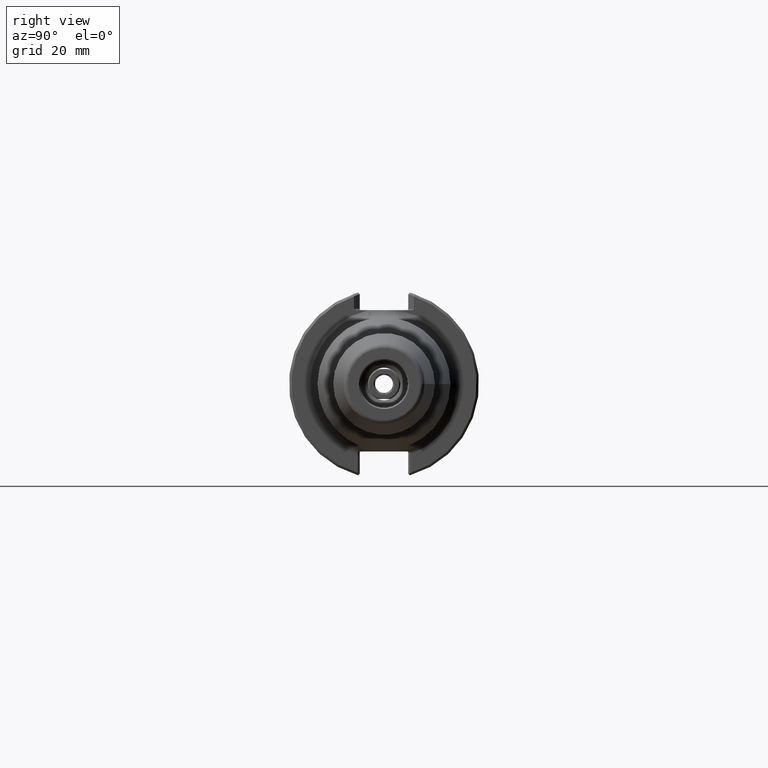
[diagram: clean part render]
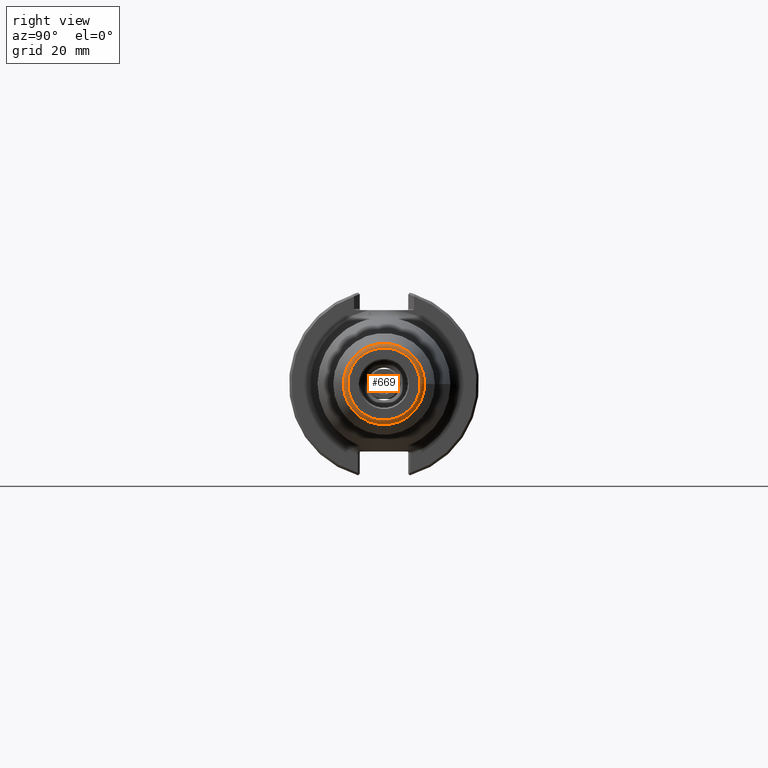
[diagram: same view with one face highlighted and labeled with its STEP entity id]
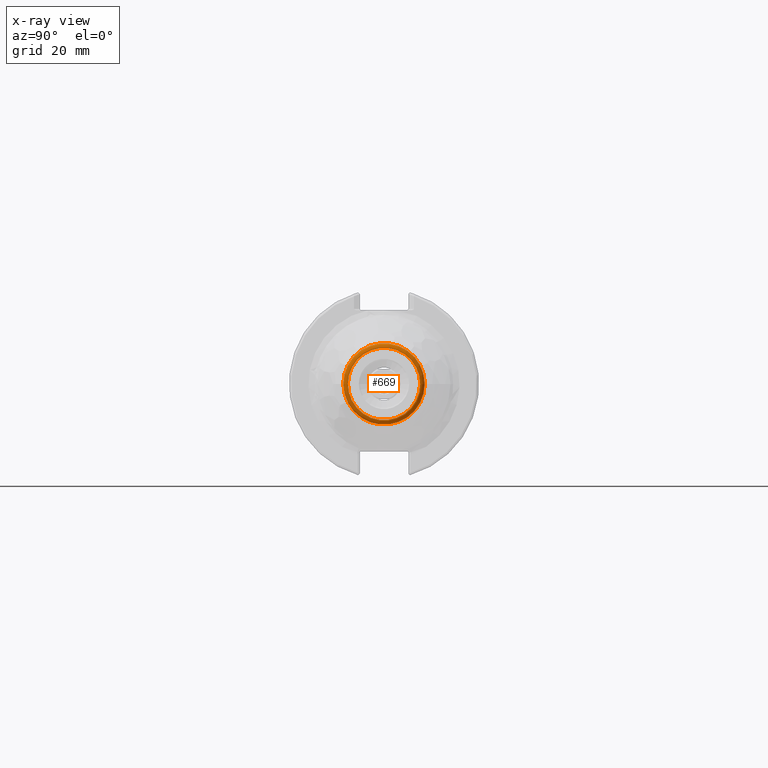
[diagram: x-ray of the same camera — body ghosted, the highlighted face saturated]
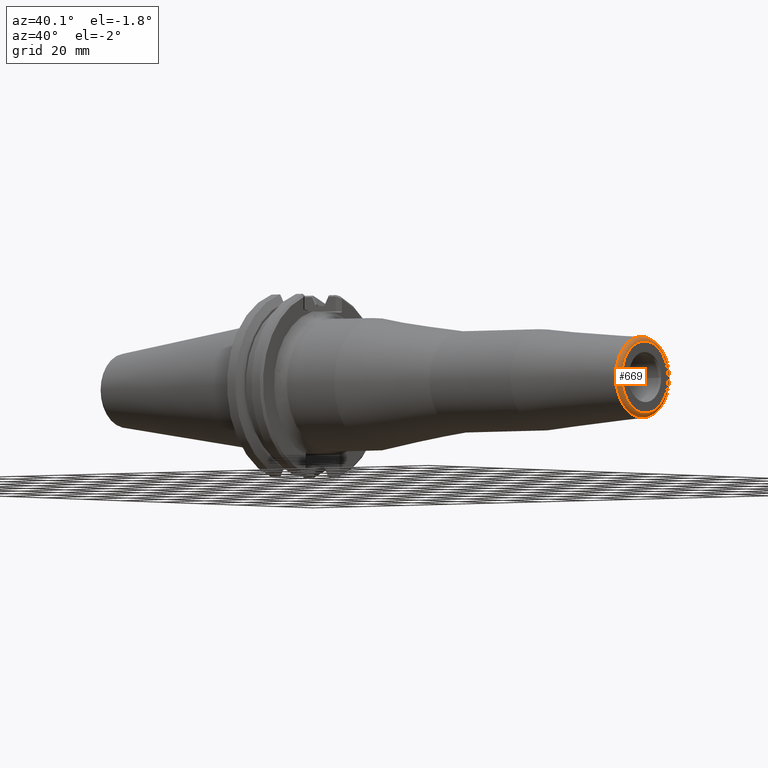
[diagram: same view with one face highlighted and labeled with its STEP entity id]
A machine part, right view. The second image highlights one B-rep face of the part: STEP entity #669.
The next image is the same camera in x-ray: the body ghosted, the highlighted face saturated — about 0% of this face is hidden behind the body in this view.
A second angle (auxiliary view) of the same face is appended — the face is thin or edge-on in the first view.
In plain terms, the highlighted toroidal blend (fillet) surface has major radius 12.0912 mm and minor (blend) radius 1.524 mm.
Its self-contained STEP definition (entity closure, byte-faithful):
#642=CARTESIAN_POINT('',(158.485999999999990,0.0,0.0));
#643=DIRECTION('',(1.0,0.0,0.0));
#644=DIRECTION('',(0.0,0.0,-1.0));
#645=AXIS2_PLACEMENT_3D('',#642,#643,#644);
#646=TOROIDAL_SURFACE('',#645,12.091228890712898,1.524000000000000);
#647=CARTESIAN_POINT('',(158.605571661889200,13.610530907322184,2.465190E-031));
#648=VERTEX_POINT('',#647);
#649=CARTESIAN_POINT('',(158.605571661889200,0.0,-1.666754E-015));
#650=DIRECTION('',(1.0,0.0,0.0));
#651=DIRECTION('',(0.0,-1.0,0.0));
#652=AXIS2_PLACEMENT_3D('',#649,#650,#651);
#653=CIRCLE('',#652,13.610530907322184);
#654=EDGE_CURVE('',#648,#648,#653,.T.);
#655=ORIENTED_EDGE('',*,*,#654,.T.);
#656=EDGE_LOOP('',(#655));
#657=FACE_OUTER_BOUND('',#656,.T.);
#658=CARTESIAN_POINT('',(160.009999999999990,12.091228890712898,-2.961399E-015));
#659=VERTEX_POINT('',#658);
#660=CARTESIAN_POINT('',(160.009999999999990,0.0,0.0));
#661=DIRECTION('',(-1.0,0.0,0.0));
#662=DIRECTION('',(0.0,-1.0,0.0));
#663=AXIS2_PLACEMENT_3D('',#660,#661,#662);
#664=CIRCLE('',#663,12.091228890712898);
#665=EDGE_CURVE('',#659,#659,#664,.T.);
#666=ORIENTED_EDGE('',*,*,#665,.T.);
#667=EDGE_LOOP('',(#666));
#668=FACE_BOUND('',#667,.T.);
#669=ADVANCED_FACE('',(#657,#668),#646,.T.);